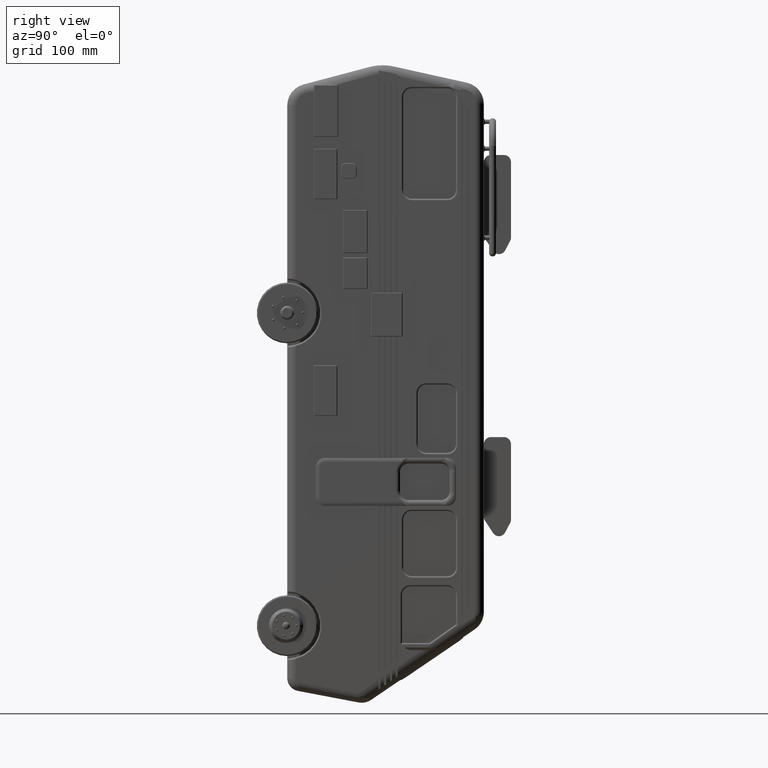
[diagram: clean part render]
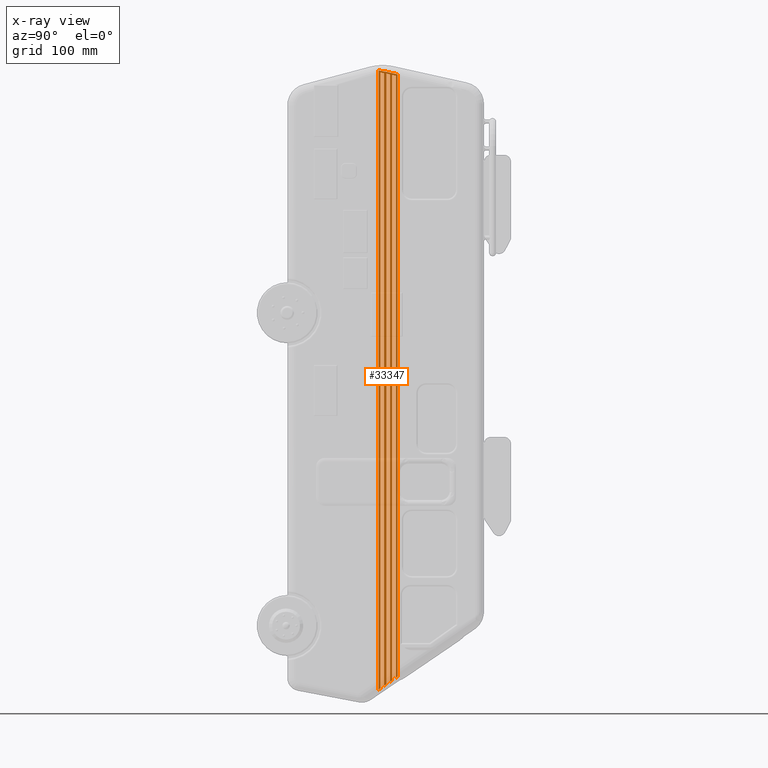
[diagram: x-ray — body ghosted, one internal face saturated and labeled with its STEP entity id]
A machine part, right view, then the same camera in x-ray: the body is ghosted and one INTERNAL B-rep face — a face not visible from any outside direction — is saturated and labeled: STEP entity #33347.
In plain terms, the highlighted planar face has unit normal (1, 0, -0).
Its self-contained STEP definition (entity closure, byte-faithful):
#164 = VERTEX_POINT ( 'NONE', #20357 ) ;
#283 = EDGE_CURVE ( 'NONE', #38009, #17489, #28862, .T. ) ;
#709 = ORIENTED_EDGE ( 'NONE', *, *, #1807, .F. ) ;
#1174 = CARTESIAN_POINT ( 'NONE',  ( -122.0000000000000000, 214.4072599133924939, -84.83668532835686449 ) ) ;
#1807 = EDGE_CURVE ( 'NONE', #21662, #33622, #10785, .T. ) ;
#1839 = ORIENTED_EDGE ( 'NONE', *, *, #22025, .T. ) ;
#2005 = VECTOR ( 'NONE', #5106, 999.9999999999998863 ) ;
#2573 = EDGE_CURVE ( 'NONE', #4382, #36766, #24147, .T. ) ;
#2612 = LINE ( 'NONE', #12673, #20961 ) ;
#2908 = VECTOR ( 'NONE', #41476, 999.9999999999998863 ) ;
#3025 = ORIENTED_EDGE ( 'NONE', *, *, #37218, .T. ) ;
#3924 = DIRECTION ( 'NONE',  ( -0.000000000000000000, -0.8267128799608792766, -0.5626240433067085656 ) ) ;
#4201 = DIRECTION ( 'NONE',  ( 0.000000000000000000, -3.898237811692299877E-17, -1.000000000000000000 ) ) ;
#4382 = VERTEX_POINT ( 'NONE', #25939 ) ;
#5106 = DIRECTION ( 'NONE',  ( -0.000000000000000000, -0.8267128799608792766, -0.5626240433067085656 ) ) ;
#5193 = EDGE_CURVE ( 'NONE', #33773, #16118, #19933, .T. ) ;
#5386 = EDGE_CURVE ( 'NONE', #16118, #7910, #10720, .T. ) ;
#5584 = DIRECTION ( 'NONE',  ( 0.000000000000000000, -3.930820228439102227E-17, -1.000000000000000000 ) ) ;
#5832 = CARTESIAN_POINT ( 'NONE',  ( -122.0000000000000000, 227.3038499920727702, -781.9110262119254458 ) ) ;
#6073 = CARTESIAN_POINT ( 'NONE',  ( -122.0000000000000000, 216.4072599133924086, -789.3267611265828236 ) ) ;
#6313 = CARTESIAN_POINT ( 'NONE',  ( -122.0000000000000000, -8.269664876021998623, -37.27341704989645166 ) ) ;
#6654 = EDGE_CURVE ( 'NONE', #29111, #21662, #19006, .T. ) ;
#6730 = DIRECTION ( 'NONE',  ( 0.000000000000000000, -0.9762608648340967976, 0.2165980696898788527 ) ) ;
#7009 = EDGE_CURVE ( 'NONE', #33622, #7827, #10890, .T. ) ;
#7544 = VECTOR ( 'NONE', #23596, 1000.000000000000000 ) ;
#7606 = AXIS2_PLACEMENT_3D ( 'NONE', #20421, #37231, #17427 ) ;
#7827 = VERTEX_POINT ( 'NONE', #9514 ) ;
#7910 = VERTEX_POINT ( 'NONE', #28238 ) ;
#7960 = CARTESIAN_POINT ( 'NONE',  ( -122.0000000000000000, 222.9989794767512876, -8.843536485072720323E-15 ) ) ;
#8947 = ORIENTED_EDGE ( 'NONE', *, *, #15699, .T. ) ;
#9218 = VECTOR ( 'NONE', #3924, 999.9999999999998863 ) ;
#9431 = EDGE_CURVE ( 'NONE', #23807, #4382, #10525, .T. ) ;
#9514 = CARTESIAN_POINT ( 'NONE',  ( -122.0000000000000000, 222.7121304287139196, -86.45583518391423183 ) ) ;
#9547 = ORIENTED_EDGE ( 'NONE', *, *, #5193, .F. ) ;
#10089 = DIRECTION ( 'NONE',  ( -0.000000000000000000, -0.8267128799608792766, -0.5626240433067085656 ) ) ;
#10525 = LINE ( 'NONE', #7960, #7544 ) ;
#10720 = LINE ( 'NONE', #16947, #15381 ) ;
#10785 = LINE ( 'NONE', #17428, #33181 ) ;
#10849 = DIRECTION ( 'NONE',  ( -0.000000000000000000, -3.930820228439102227E-17, -1.000000000000000000 ) ) ;
#10890 = LINE ( 'NONE', #23946, #37795 ) ;
#10911 = EDGE_CURVE ( 'NONE', #7827, #11473, #35856, .T. ) ;
#11290 = LINE ( 'NONE', #37085, #19730 ) ;
#11296 = CARTESIAN_POINT ( 'NONE',  ( -122.0000000000000000, 207.6197631072913055, -83.33077767684237358 ) ) ;
#11473 = VERTEX_POINT ( 'NONE', #35435 ) ;
#11480 = EDGE_CURVE ( 'NONE', #24712, #15263, #29698, .T. ) ;
#11564 = LINE ( 'NONE', #24620, #18986 ) ;
#11775 = EDGE_CURVE ( 'NONE', #36766, #24712, #19640, .T. ) ;
#11942 = CARTESIAN_POINT ( 'NONE',  ( -122.0000000000000000, 220.7121304287138912, -786.3970575814335007 ) ) ;
#12487 = CARTESIAN_POINT ( 'NONE',  ( -122.0000000000000000, 435.6412187615869698, -640.1258724660063990 ) ) ;
#12641 = DIRECTION ( 'NONE',  ( 0.000000000000000000, 0.000000000000000000, 1.000000000000000000 ) ) ;
#12673 = CARTESIAN_POINT ( 'NONE',  ( -122.0000000000000000, 216.4072599133924371, -8.506580348486412785E-15 ) ) ;
#12798 = ORIENTED_EDGE ( 'NONE', *, *, #11480, .T. ) ;
#13262 = DIRECTION ( 'NONE',  ( 0.000000000000000000, -0.9762608648340921347, 0.2165980696898998636 ) ) ;
#13824 = ORIENTED_EDGE ( 'NONE', *, *, #36640, .F. ) ;
#14071 = LINE ( 'NONE', #14714, #27375 ) ;
#14299 = LINE ( 'NONE', #40093, #42011 ) ;
#14348 = ORIENTED_EDGE ( 'NONE', *, *, #5386, .F. ) ;
#14380 = CARTESIAN_POINT ( 'NONE',  ( -122.0000000000000000, 229.3038499920727702, -780.5499151008142462 ) ) ;
#14630 = ORIENTED_EDGE ( 'NONE', *, *, #34665, .T. ) ;
#14714 = CARTESIAN_POINT ( 'NONE',  ( -122.0000000000000000, 209.6197631072913055, -8.171476866228256213E-15 ) ) ;
#14799 = LINE ( 'NONE', #23194, #9218 ) ;
#15028 = ORIENTED_EDGE ( 'NONE', *, *, #34981, .T. ) ;
#15263 = VERTEX_POINT ( 'NONE', #34373 ) ;
#15381 = VECTOR ( 'NONE', #23567, 1000.000000000000000 ) ;
#15517 = CARTESIAN_POINT ( 'NONE',  ( -122.0000000000000000, 229.3038499920727702, -87.93402069733838289 ) ) ;
#15699 = EDGE_CURVE ( 'NONE', #15263, #41789, #2612, .T. ) ;
#16118 = VERTEX_POINT ( 'NONE', #11296 ) ;
#16627 = DIRECTION ( 'NONE',  ( 0.000000000000000000, 0.000000000000000000, 1.000000000000000000 ) ) ;
#16630 = VERTEX_POINT ( 'NONE', #33076 ) ;
#16633 = VECTOR ( 'NONE', #32866, 1000.000000000000114 ) ;
#16947 = CARTESIAN_POINT ( 'NONE',  ( -122.0000000000000000, 207.6197631072913055, -8.093512109994410585E-15 ) ) ;
#17295 = VECTOR ( 'NONE', #10089, 999.9999999999998863 ) ;
#17427 = DIRECTION ( 'NONE',  ( -0.000000000000000000, 0.000000000000000000, -1.000000000000000000 ) ) ;
#17428 = CARTESIAN_POINT ( 'NONE',  ( -122.0000000000000000, -7.836468736642241417, -35.32089532022826006 ) ) ;
#17489 = VERTEX_POINT ( 'NONE', #39853 ) ;
#17699 = ORIENTED_EDGE ( 'NONE', *, *, #9431, .T. ) ;
#18986 = VECTOR ( 'NONE', #21419, 1000.000000000000000 ) ;
#19006 = LINE ( 'NONE', #39014, #37737 ) ;
#19302 = CARTESIAN_POINT ( 'NONE',  ( -122.0000000000000000, 435.6412187615869698, -640.1258724660063990 ) ) ;
#19346 = CARTESIAN_POINT ( 'NONE',  ( -122.0000000000000000, 222.7121304287139480, -86.47154915434238376 ) ) ;
#19640 = LINE ( 'NONE', #32816, #37052 ) ;
#19730 = VECTOR ( 'NONE', #20699, 1000.000000000000114 ) ;
#19933 = LINE ( 'NONE', #32917, #26964 ) ;
#20168 = VECTOR ( 'NONE', #12641, 1000.000000000000000 ) ;
#20357 = CARTESIAN_POINT ( 'NONE',  ( -122.0000000000000000, 209.6197631072913055, -85.82314035061736490 ) ) ;
#20421 = CARTESIAN_POINT ( 'NONE',  ( -122.0000000000000000, 0.000000000000000000, 0.000000000000000000 ) ) ;
#20624 = FACE_OUTER_BOUND ( 'NONE', #38719, .T. ) ;
#20699 = DIRECTION ( 'NONE',  ( 0.000000000000000000, -0.9762608648340940221, 0.2165980696898907876 ) ) ;
#20961 = VECTOR ( 'NONE', #5584, 1000.000000000000000 ) ;
#21044 = CARTESIAN_POINT ( 'NONE',  ( -122.0000000000000000, 222.9989794767512876, -88.58382367478800745 ) ) ;
#21078 = VERTEX_POINT ( 'NONE', #34090 ) ;
#21174 = EDGE_CURVE ( 'NONE', #164, #16630, #14071, .T. ) ;
#21419 = DIRECTION ( 'NONE',  ( 0.000000000000000000, 0.000000000000000000, 1.000000000000000000 ) ) ;
#21528 = ORIENTED_EDGE ( 'NONE', *, *, #6654, .F. ) ;
#21662 = VERTEX_POINT ( 'NONE', #15517 ) ;
#22025 = EDGE_CURVE ( 'NONE', #16630, #7910, #34692, .T. ) ;
#22070 = CARTESIAN_POINT ( 'NONE',  ( -122.0000000000000000, 213.9246336226127596, 0.000000000000000000 ) ) ;
#23101 = CARTESIAN_POINT ( 'NONE',  ( -122.0000000000000000, -7.833145919872253060, -35.30591856637732207 ) ) ;
#23194 = CARTESIAN_POINT ( 'NONE',  ( -122.0000000000000000, 435.6412187615869698, -640.1258724660063990 ) ) ;
#23567 = DIRECTION ( 'NONE',  ( -0.000000000000000000, -3.898237811692299877E-17, -1.000000000000000000 ) ) ;
#23596 = DIRECTION ( 'NONE',  ( 0.000000000000000000, -3.965729576800463102E-17, -1.000000000000000000 ) ) ;
#23807 = VERTEX_POINT ( 'NONE', #21044 ) ;
#23946 = CARTESIAN_POINT ( 'NONE',  ( -122.0000000000000000, 222.7121304287139196, 0.000000000000000000 ) ) ;
#24147 = LINE ( 'NONE', #27798, #2005 ) ;
#24260 = PLANE ( 'NONE',  #7606 ) ;
#24620 = CARTESIAN_POINT ( 'NONE',  ( -122.0000000000000000, 227.3038499920727702, 0.000000000000000000 ) ) ;
#24712 = VERTEX_POINT ( 'NONE', #36309 ) ;
#24983 = ORIENTED_EDGE ( 'NONE', *, *, #40115, .T. ) ;
#25939 = CARTESIAN_POINT ( 'NONE',  ( -122.0000000000000000, 222.9989794767512592, -784.8407297570748824 ) ) ;
#26964 = VECTOR ( 'NONE', #36524, 1000.000000000000114 ) ;
#27375 = VECTOR ( 'NONE', #4201, 1000.000000000000000 ) ;
#27798 = CARTESIAN_POINT ( 'NONE',  ( -122.0000000000000000, 435.6412187615869698, -640.1258724660063990 ) ) ;
#28238 = CARTESIAN_POINT ( 'NONE',  ( -122.0000000000000000, 207.6197631072912770, -795.3071408974017231 ) ) ;
#28793 = LINE ( 'NONE', #6313, #33656 ) ;
#28862 = LINE ( 'NONE', #22070, #20168 ) ;
#29111 = VERTEX_POINT ( 'NONE', #14380 ) ;
#29474 = ORIENTED_EDGE ( 'NONE', *, *, #11775, .T. ) ;
#29698 = LINE ( 'NONE', #39277, #16633 ) ;
#31697 = DIRECTION ( 'NONE',  ( 0.000000000000000000, -0.9762608648340966866, 0.2165980696898788249 ) ) ;
#32553 = ORIENTED_EDGE ( 'NONE', *, *, #10911, .F. ) ;
#32816 = CARTESIAN_POINT ( 'NONE',  ( -122.0000000000000000, 220.7121304287138912, 0.000000000000000000 ) ) ;
#32866 = DIRECTION ( 'NONE',  ( 0.000000000000000000, -0.9762608648340920237, 0.2165980696898998359 ) ) ;
#32909 = LINE ( 'NONE', #19302, #17295 ) ;
#32917 = CARTESIAN_POINT ( 'NONE',  ( -122.0000000000000000, -7.880387320052154365, -35.51884719617523700 ) ) ;
#33076 = CARTESIAN_POINT ( 'NONE',  ( -122.0000000000000000, 209.6197631072912770, -793.9460297862906373 ) ) ;
#33181 = VECTOR ( 'NONE', #31697, 1000.000000000000114 ) ;
#33347 = ADVANCED_FACE ( 'NONE', ( #20624 ), #24260, .F. ) ;
#33622 = VERTEX_POINT ( 'NONE', #19346 ) ;
#33656 = VECTOR ( 'NONE', #6730, 999.9999999999998863 ) ;
#33773 = VERTEX_POINT ( 'NONE', #1174 ) ;
#33889 = EDGE_CURVE ( 'NONE', #29111, #38691, #32909, .T. ) ;
#34090 = CARTESIAN_POINT ( 'NONE',  ( -122.0000000000000000, 227.3038499920727702, -89.53892356403939345 ) ) ;
#34373 = CARTESIAN_POINT ( 'NONE',  ( -122.0000000000000000, 216.4072599133924371, -87.10563816136372850 ) ) ;
#34665 = EDGE_CURVE ( 'NONE', #21078, #23807, #28793, .T. ) ;
#34692 = LINE ( 'NONE', #12487, #2908 ) ;
#34981 = EDGE_CURVE ( 'NONE', #41789, #38009, #14799, .T. ) ;
#35435 = CARTESIAN_POINT ( 'NONE',  ( -122.0000000000000000, 214.4072599133924371, -84.61327548758870876 ) ) ;
#35689 = ORIENTED_EDGE ( 'NONE', *, *, #7009, .F. ) ;
#35723 = ORIENTED_EDGE ( 'NONE', *, *, #21174, .T. ) ;
#35856 = LINE ( 'NONE', #23101, #37025 ) ;
#36309 = CARTESIAN_POINT ( 'NONE',  ( -122.0000000000000000, 220.7121304287138912, -88.06073805061519977 ) ) ;
#36524 = DIRECTION ( 'NONE',  ( 0.000000000000000000, -0.9762608648340940221, 0.2165980696898907876 ) ) ;
#36640 = EDGE_CURVE ( 'NONE', #11473, #33773, #14299, .T. ) ;
#36766 = VERTEX_POINT ( 'NONE', #11942 ) ;
#36905 = DIRECTION ( 'NONE',  ( 0.000000000000000000, 0.000000000000000000, 1.000000000000000000 ) ) ;
#37025 = VECTOR ( 'NONE', #13262, 999.9999999999998863 ) ;
#37052 = VECTOR ( 'NONE', #16627, 1000.000000000000000 ) ;
#37085 = CARTESIAN_POINT ( 'NONE',  ( -122.0000000000000000, -8.313583459431935552, -37.47136892584342149 ) ) ;
#37218 = EDGE_CURVE ( 'NONE', #38691, #21078, #11564, .T. ) ;
#37231 = DIRECTION ( 'NONE',  ( 1.000000000000000000, 0.000000000000000000, -0.000000000000000000 ) ) ;
#37737 = VECTOR ( 'NONE', #38810, 1000.000000000000000 ) ;
#37795 = VECTOR ( 'NONE', #36905, 1000.000000000000000 ) ;
#38009 = VERTEX_POINT ( 'NONE', #41207 ) ;
#38498 = ORIENTED_EDGE ( 'NONE', *, *, #283, .T. ) ;
#38691 = VERTEX_POINT ( 'NONE', #5832 ) ;
#38719 = EDGE_LOOP ( 'NONE', ( #40414, #3025, #14630, #17699, #40782, #29474, #12798, #8947, #15028, #38498, #24983, #35723, #1839, #14348, #9547, #13824, #32553, #35689, #709, #21528 ) ) ;
#38810 = DIRECTION ( 'NONE',  ( 0.000000000000000000, 0.000000000000000000, 1.000000000000000000 ) ) ;
#39014 = CARTESIAN_POINT ( 'NONE',  ( -122.0000000000000000, 229.3038499920727702, 0.000000000000000000 ) ) ;
#39277 = CARTESIAN_POINT ( 'NONE',  ( -122.0000000000000000, -8.266342059252052010, -37.25844029604550656 ) ) ;
#39853 = CARTESIAN_POINT ( 'NONE',  ( -122.0000000000000000, 213.9246336226127596, -86.77824023986879354 ) ) ;
#40093 = CARTESIAN_POINT ( 'NONE',  ( -122.0000000000000000, 214.4072599133924371, -8.427963943917630641E-15 ) ) ;
#40115 = EDGE_CURVE ( 'NONE', #17489, #164, #11290, .T. ) ;
#40414 = ORIENTED_EDGE ( 'NONE', *, *, #33889, .T. ) ;
#40782 = ORIENTED_EDGE ( 'NONE', *, *, #2573, .T. ) ;
#41207 = CARTESIAN_POINT ( 'NONE',  ( -122.0000000000000000, 213.9246336226127596, -791.0163262411413143 ) ) ;
#41476 = DIRECTION ( 'NONE',  ( -0.000000000000000000, -0.8267128799608792766, -0.5626240433067085656 ) ) ;
#41789 = VERTEX_POINT ( 'NONE', #6073 ) ;
#42011 = VECTOR ( 'NONE', #10849, 1000.000000000000000 ) ;